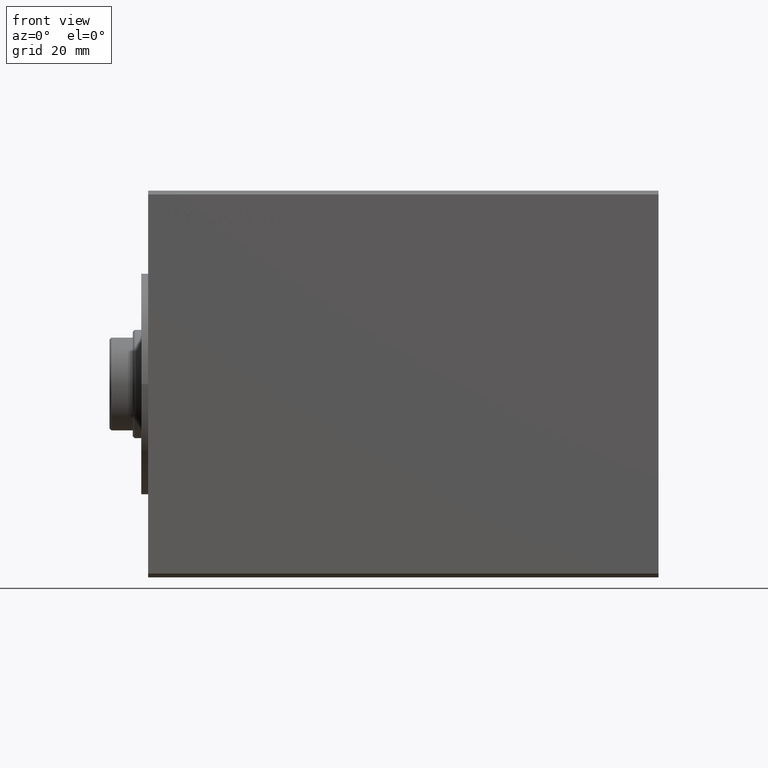
[diagram: clean part render]
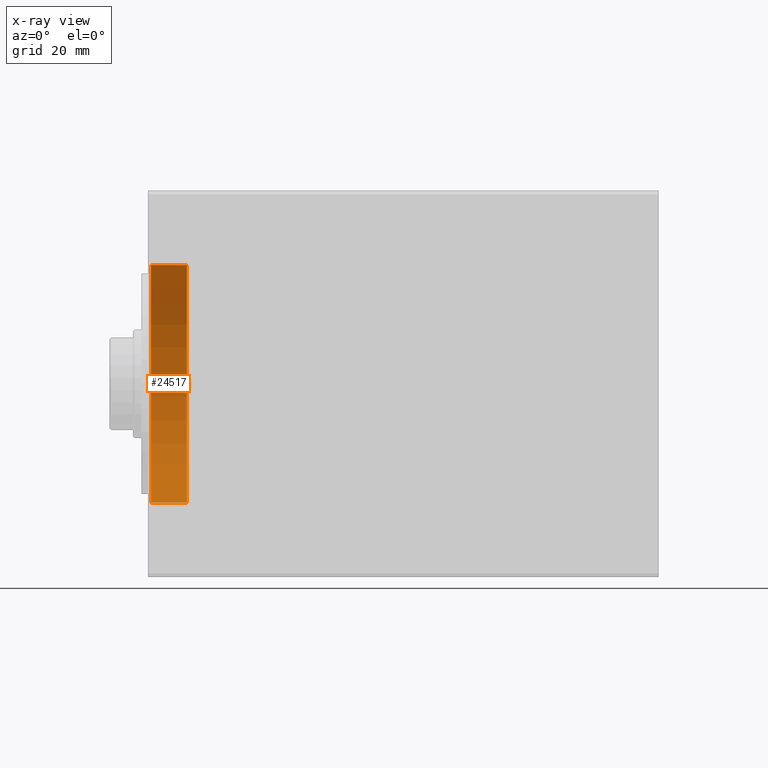
[diagram: x-ray — body ghosted, one internal face saturated and labeled with its STEP entity id]
A machine part, front view, then the same camera in x-ray: the body is ghosted and one INTERNAL B-rep face — a face not visible from any outside direction — is saturated and labeled: STEP entity #24517.
In plain terms, the highlighted cylindrical surface (partial cylindrical patch) has radius 30.75 mm, axis along (-1, -0, -0).
Its self-contained STEP definition (entity closure, byte-faithful):
#22 = CYLINDRICAL_SURFACE ( 'NONE', #11496, 30.75000000000000355 ) ;
#1268 = CARTESIAN_POINT ( 'NONE',  ( 10.00000000000000000, 0.000000000000000000, 0.000000000000000000 ) ) ;
#3071 = LINE ( 'NONE', #16636, #5295 ) ;
#4920 = VECTOR ( 'NONE', #7433, 1000.000000000000000 ) ;
#5295 = VECTOR ( 'NONE', #19297, 1000.000000000000000 ) ;
#7433 = DIRECTION ( 'NONE',  ( -1.000000000000000000, -0.000000000000000000, -0.000000000000000000 ) ) ;
#7968 = DIRECTION ( 'NONE',  ( -1.000000000000000000, 0.000000000000000000, 0.000000000000000000 ) ) ;
#8596 = CARTESIAN_POINT ( 'NONE',  ( 10.00000000000000000, 0.000000000000000000, 30.75000000000000355 ) ) ;
#9138 = DIRECTION ( 'NONE',  ( 0.000000000000000000, 0.000000000000000000, -1.000000000000000000 ) ) ;
#10264 = FACE_OUTER_BOUND ( 'NONE', #36527, .T. ) ;
#10719 = VERTEX_POINT ( 'NONE', #41393 ) ;
#11126 = DIRECTION ( 'NONE',  ( 0.000000000000000000, 0.000000000000000000, 1.000000000000000000 ) ) ;
#11496 = AXIS2_PLACEMENT_3D ( 'NONE', #23827, #34275, #11126 ) ;
#15062 = DIRECTION ( 'NONE',  ( 0.000000000000000000, 0.000000000000000000, 1.000000000000000000 ) ) ;
#16636 = CARTESIAN_POINT ( 'NONE',  ( 10.00000000000000000, 3.765788907378111328E-15, -30.75000000000000355 ) ) ;
#16879 = EDGE_CURVE ( 'NONE', #26384, #29790, #30345, .T. ) ;
#19297 = DIRECTION ( 'NONE',  ( -1.000000000000000000, -0.000000000000000000, -0.000000000000000000 ) ) ;
#20109 = ORIENTED_EDGE ( 'NONE', *, *, #35699, .T. ) ;
#20392 = EDGE_CURVE ( 'NONE', #26384, #24349, #41218, .T. ) ;
#22486 = CARTESIAN_POINT ( 'NONE',  ( 10.00000000000000000, 3.765788907378111328E-15, -30.75000000000000355 ) ) ;
#23827 = CARTESIAN_POINT ( 'NONE',  ( 10.00000000000000000, 0.000000000000000000, 0.000000000000000000 ) ) ;
#24349 = VERTEX_POINT ( 'NONE', #22486 ) ;
#24517 = ADVANCED_FACE ( 'NONE', ( #10264 ), #22, .F. ) ;
#26384 = VERTEX_POINT ( 'NONE', #8596 ) ;
#27699 = AXIS2_PLACEMENT_3D ( 'NONE', #1268, #7968, #15062 ) ;
#28011 = AXIS2_PLACEMENT_3D ( 'NONE', #36039, #42500, #9138 ) ;
#29390 = CIRCLE ( 'NONE', #28011, 30.75000000000000355 ) ;
#29790 = VERTEX_POINT ( 'NONE', #31276 ) ;
#30345 = LINE ( 'NONE', #43914, #4920 ) ;
#31276 = CARTESIAN_POINT ( 'NONE',  ( 0.7000000000000234923, 0.000000000000000000, 30.75000000000000355 ) ) ;
#32230 = ORIENTED_EDGE ( 'NONE', *, *, #20392, .F. ) ;
#32555 = ORIENTED_EDGE ( 'NONE', *, *, #36037, .F. ) ;
#34275 = DIRECTION ( 'NONE',  ( -1.000000000000000000, -0.000000000000000000, -0.000000000000000000 ) ) ;
#35699 = EDGE_CURVE ( 'NONE', #29790, #10719, #29390, .T. ) ;
#36037 = EDGE_CURVE ( 'NONE', #24349, #10719, #3071, .T. ) ;
#36039 = CARTESIAN_POINT ( 'NONE',  ( 0.7000000000000234923, 0.000000000000000000, 0.000000000000000000 ) ) ;
#36527 = EDGE_LOOP ( 'NONE', ( #32555, #32230, #43700, #20109 ) ) ;
#41218 = CIRCLE ( 'NONE', #27699, 30.75000000000000355 ) ;
#41393 = CARTESIAN_POINT ( 'NONE',  ( 0.7000000000000234923, 3.765788907378111328E-15, -30.75000000000000355 ) ) ;
#42500 = DIRECTION ( 'NONE',  ( -1.000000000000000000, 0.000000000000000000, 0.000000000000000000 ) ) ;
#43700 = ORIENTED_EDGE ( 'NONE', *, *, #16879, .T. ) ;
#43914 = CARTESIAN_POINT ( 'NONE',  ( 10.00000000000000000, 0.000000000000000000, 30.75000000000000355 ) ) ;